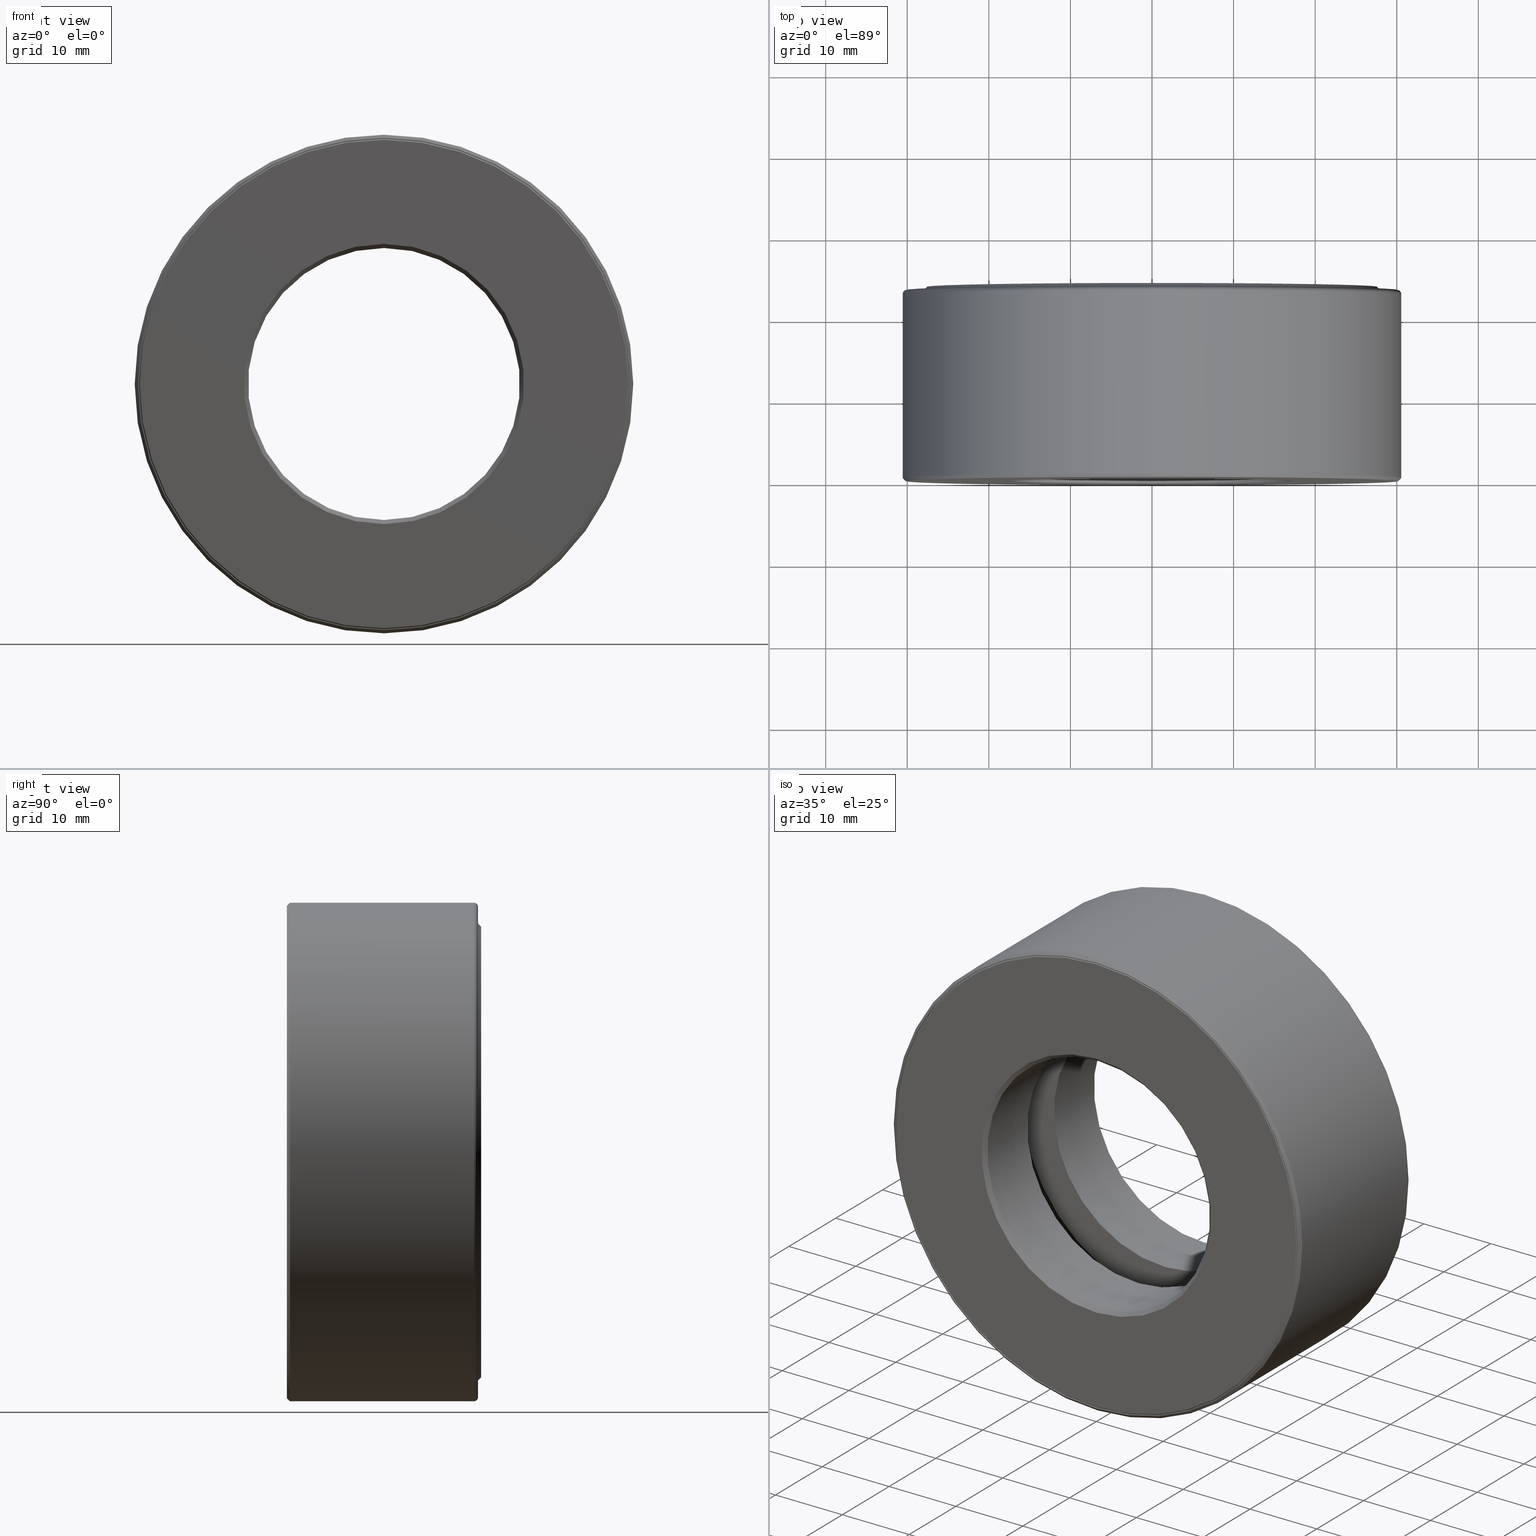
[diagram: canonical four-view strip — front | top / right | iso, engineering-drawing reading convention]
A machine part, canonical four-view strip (front | top / right | iso — engineering-drawing reading convention). The complete STEP part file that produces these views, byte-faithful:
ISO-10303-21;
HEADER;
FILE_DESCRIPTION (( 'STEP AP203' ),
    '1' );
FILE_NAME ('T-100-16.step',
    '2016-06-29T18:27:20',
    ( '' ),
    ( '' ),
    'SwSTEP 2.0',
    'SolidWorks 2016',
    '' );
FILE_SCHEMA (( 'CONFIG_CONTROL_DESIGN' ));
ENDSEC;

DATA;
#1 = PRODUCT_DEFINITION ( 'UNKNOWN', '', #219, #387 ) ;
#2 = CARTESIAN_POINT ( 'NONE',  ( 0.0000000000000000000, 0.3562500000000000100, 1.136625000000000000 ) ) ;
#3 = DIRECTION ( 'NONE',  ( 0.0000000000000000000, 0.0000000000000000000, 1.000000000000000000 ) ) ;
#4 = CARTESIAN_POINT ( 'NONE',  ( 0.0000000000000000000, 0.9024999999999999700, 0.0000000000000000000 ) ) ;
#5 = CALENDAR_DATE ( 2016, 29, 6 ) ;
#6 = CALENDAR_DATE ( 2016, 29, 6 ) ;
#7 = ADVANCED_FACE ( 'NONE', ( ), #266, .T. ) ;
#8 = CIRCLE ( 'NONE', #453, 1.183125000000000000 ) ;
#9 = CARTESIAN_POINT ( 'NONE',  ( 0.9866249999999999700, 0.4687499999999998900, -6.889565551872212700E-015 ) ) ;
#10 = ORIENTED_EDGE ( 'NONE', *, *, #21, .T. ) ;
#11 = ORIENTED_EDGE ( 'NONE', *, *, #21, .F. ) ;
#12 = ORIENTED_EDGE ( 'NONE', *, *, #555, .F. ) ;
#13 = EDGE_CURVE ( 'NONE', #526, #526, #366, .T. ) ;
#14 = CC_DESIGN_PERSON_AND_ORGANIZATION_ASSIGNMENT ( #147, #563, ( #245 ) ) ;
#15 = CARTESIAN_POINT ( 'NONE',  ( 1.004991548302120000E-015, 0.5812499999999999300, 0.0000000000000000000 ) ) ;
#16 = DATE_AND_TIME ( #5, #515 ) ;
#17 = EDGE_LOOP ( 'NONE', ( #247 ) ) ;
#18 = SPHERICAL_SURFACE ( 'NONE', #592, 0.1874999999999999400 ) ;
#19 = DIRECTION ( 'NONE',  ( 0.0000000000000000000, -0.0000000000000000000, -1.000000000000000000 ) ) ;
#20 = EDGE_LOOP ( 'NONE', ( #280 ) ) ;
#21 = EDGE_CURVE ( 'NONE', #246, #246, #123, .T. ) ;
#22 = CARTESIAN_POINT ( 'NONE',  ( 0.0000000000000000000, 0.9024999999999999700, 0.0000000000000000000 ) ) ;
#23 = DATE_AND_TIME ( #434, #164 ) ;
#24 = ADVANCED_BREP_SHAPE_REPRESENTATION ( 'T-100-16', ( #457, #503, #244, #525, #287, #45, #25 ), #470 ) ;
#25 = AXIS2_PLACEMENT_3D ( 'NONE', #558, #3, #157 ) ;
#26 = CONICAL_SURFACE ( 'NONE', #257, 1.178125000000000100, 0.7853981633974420600 ) ;
#27 = FACE_OUTER_BOUND ( 'NONE', #114, .T. ) ;
#28 = CLOSED_SHELL ( 'NONE', ( #56 ) ) ;
#29 = CARTESIAN_POINT ( 'NONE',  ( 0.0000000000000000000, 0.9174999999999997600, 0.0000000000000000000 ) ) ;
#30 = PRODUCT_DEFINITION_SHAPE ( 'NONE', 'NONE',  #1 ) ;
#31 = EDGE_CURVE ( 'NONE', #343, #343, #248, .T. ) ;
#32 = PERSON_AND_ORGANIZATION ( #454, #480 ) ;
#33 = ORIENTED_EDGE ( 'NONE', *, *, #404, .F. ) ;
#34 = FACE_OUTER_BOUND ( 'NONE', #167, .T. ) ;
#35 = DIRECTION ( 'NONE',  ( -0.0000000000000000000, 1.000000000000000000, -0.0000000000000000000 ) ) ;
#36 = ADVANCED_FACE ( 'NONE', ( #281, #462 ), #64, .T. ) ;
#37 = DIRECTION ( 'NONE',  ( -0.0000000000000000000, 1.000000000000000000, -0.0000000000000000000 ) ) ;
#38 = CC_DESIGN_APPROVAL ( #482, ( #1 ) ) ;
#39 = ADVANCED_FACE ( 'NONE', ( #78, #379 ), #106, .F. ) ;
#40 = DATE_AND_TIME ( #6, #435 ) ;
#41 = FACE_OUTER_BOUND ( 'NONE', #437, .T. ) ;
#42 = ORIENTED_EDGE ( 'NONE', *, *, #478, .T. ) ;
#43 = FACE_BOUND ( 'NONE', #217, .T. ) ;
#44 = ORIENTED_EDGE ( 'NONE', *, *, #491, .T. ) ;
#45 = MANIFOLD_SOLID_BREP ( 'BALLS[3]', #490 ) ;
#46 = EDGE_CURVE ( 'NONE', #391, #391, #401, .T. ) ;
#47 = CARTESIAN_POINT ( 'NONE',  ( 0.0000000000000000000, 0.9174999999999997600, 0.6562500000000001100 ) ) ;
#48 = PERSON_AND_ORGANIZATION ( #454, #480 ) ;
#49 = CARTESIAN_POINT ( 'NONE',  ( -5.232370149155376900E-016, 0.3562499999999999000, 0.0000000000000000000 ) ) ;
#50 = CIRCLE ( 'NONE', #529, 0.6562500000000000000 ) ;
#51 = ORIENTED_EDGE ( 'NONE', *, *, #381, .F. ) ;
#52 = CIRCLE ( 'NONE', #127, 1.203125000000000000 ) ;
#53 = CARTESIAN_POINT ( 'NONE',  ( 0.0000000000000000000, 0.9174999999999997600, 0.0000000000000000000 ) ) ;
#54 = CARTESIAN_POINT ( 'NONE',  ( 0.0000000000000000000, 0.004999999999999944600, 1.183125000000000000 ) ) ;
#55 = AXIS2_PLACEMENT_3D ( 'NONE', #403, #398, #588 ) ;
#56 = ADVANCED_FACE ( 'NONE', ( ), #18, .T. ) ;
#57 = APPLICATION_PROTOCOL_DEFINITION ( 'international standard', 'config_control_design', 1994, #154 ) ;
#58 = MECHANICAL_CONTEXT ( 'NONE', #154, 'mechanical' ) ;
#59 = SPHERICAL_SURFACE ( 'NONE', #385, 0.1874999999999999400 ) ;
#60 = AXIS2_PLACEMENT_3D ( 'NONE', #4, #340, #102 ) ;
#61 = ORIENTED_EDGE ( 'NONE', *, *, #584, .T. ) ;
#62 = DIRECTION ( 'NONE',  ( 0.0000000000000000000, 0.0000000000000000000, 1.000000000000000000 ) ) ;
#63 = DIRECTION ( 'NONE',  ( -0.0000000000000000000, 1.000000000000000000, -0.0000000000000000000 ) ) ;
#64 = PLANE ( 'NONE',  #74 ) ;
#65 = CIRCLE ( 'NONE', #348, 0.6562500000000001100 ) ;
#66 = ORIENTED_EDGE ( 'NONE', *, *, #81, .T. ) ;
#67 = EDGE_CURVE ( 'NONE', #71, #71, #533, .T. ) ;
#68 = CARTESIAN_POINT ( 'NONE',  ( 3.444782775936106400E-015, 0.4687499999999998900, 0.9866249999999999700 ) ) ;
#69 = CC_DESIGN_PERSON_AND_ORGANIZATION_ASSIGNMENT ( #479, #519, ( #219 ) ) ;
#70 = DIRECTION ( 'NONE',  ( 0.0000000000000000000, 0.0000000000000000000, 1.000000000000000000 ) ) ;
#71 = VERTEX_POINT ( 'NONE', #189 ) ;
#72 = DIRECTION ( 'NONE',  ( 0.0000000000000000000, 0.0000000000000000000, 1.000000000000000000 ) ) ;
#73 = DIRECTION ( 'NONE',  ( -0.0000000000000000000, 1.000000000000000000, -0.0000000000000000000 ) ) ;
#74 = AXIS2_PLACEMENT_3D ( 'NONE', #390, #484, #302 ) ;
#75 = ADVANCED_FACE ( 'NONE', ( #359, #34 ), #467, .F. ) ;
#76 = VERTEX_POINT ( 'NONE', #243 ) ;
#77 = EDGE_LOOP ( 'NONE', ( #66 ) ) ;
#78 = FACE_OUTER_BOUND ( 'NONE', #254, .T. ) ;
#79 = EDGE_LOOP ( 'NONE', ( #576 ) ) ;
#80 = AXIS2_PLACEMENT_3D ( 'NONE', #324, #459, #505 ) ;
#81 = EDGE_CURVE ( 'NONE', #540, #540, #242, .T. ) ;
#82 = DIRECTION ( 'NONE',  ( -0.0000000000000000000, 1.000000000000000000, -0.0000000000000000000 ) ) ;
#83 = VERTEX_POINT ( 'NONE', #198 ) ;
#84 = ORIENTED_EDGE ( 'NONE', *, *, #183, .T. ) ;
#85 = AXIS2_PLACEMENT_3D ( 'NONE', #227, #502, #271 ) ;
#86 = DIRECTION ( 'NONE',  ( 0.0000000000000000000, 0.0000000000000000000, 1.000000000000000000 ) ) ;
#87 = DIRECTION ( 'NONE',  ( 1.047444401652939500E-014, 0.0000000000000000000, 1.000000000000000000 ) ) ;
#88 = VERTEX_POINT ( 'NONE', #325 ) ;
#89 = EDGE_LOOP ( 'NONE', ( #234 ) ) ;
#90 = CARTESIAN_POINT ( 'NONE',  ( 0.0000000000000000000, -6.590143231196515200E-017, 0.0000000000000000000 ) ) ;
#91 = FACE_BOUND ( 'NONE', #586, .T. ) ;
#92 = CARTESIAN_POINT ( 'NONE',  ( 0.0000000000000000000, 0.5812499999999999300, 0.0000000000000000000 ) ) ;
#93 = DIRECTION ( 'NONE',  ( -0.0000000000000000000, 1.000000000000000000, -0.0000000000000000000 ) ) ;
#94 = CARTESIAN_POINT ( 'NONE',  ( 0.0000000000000000000, 0.3562499999999999000, 0.0000000000000000000 ) ) ;
#95 = AXIS2_PLACEMENT_3D ( 'NONE', #174, #485, #536 ) ;
#96 = CARTESIAN_POINT ( 'NONE',  ( 0.0000000000000000000, -6.509481547403126000E-017, 1.178125000000000100 ) ) ;
#97 = AXIS2_PLACEMENT_3D ( 'NONE', #268, #407, #405 ) ;
#98 = FACE_OUTER_BOUND ( 'NONE', #77, .T. ) ;
#99 = ORIENTED_EDGE ( 'NONE', *, *, #555, .T. ) ;
#100 = APPROVAL_ROLE ( '' ) ;
#101 = PERSON_AND_ORGANIZATION_ROLE ( 'creator' ) ;
#102 = DIRECTION ( 'NONE',  ( 0.0000000000000000000, 0.0000000000000000000, 1.000000000000000000 ) ) ;
#103 = CARTESIAN_POINT ( 'NONE',  ( 0.0000000000000000000, 0.3562500000000000100, 0.0000000000000000000 ) ) ;
#104 = FACE_BOUND ( 'NONE', #201, .T. ) ;
#105 = EDGE_LOOP ( 'NONE', ( #99 ) ) ;
#106 = TOROIDAL_SURFACE ( 'NONE', #330, 0.9866249999999999700, 0.1874999999999999700 ) ;
#107 = CARTESIAN_POINT ( 'NONE',  ( 0.0000000000000000000, 0.9024999999999999700, 0.0000000000000000000 ) ) ;
#108 = EDGE_LOOP ( 'NONE', ( #560 ) ) ;
#109 = EDGE_CURVE ( 'NONE', #88, #88, #52, .T. ) ;
#110 = EDGE_LOOP ( 'NONE', ( #142 ) ) ;
#111 = CARTESIAN_POINT ( 'NONE',  ( 0.0000000000000000000, 0.9024999999999999700, 0.0000000000000000000 ) ) ;
#112 = CARTESIAN_POINT ( 'NONE',  ( 0.0000000000000000000, -6.829619984160658000E-017, 0.0000000000000000000 ) ) ;
#113 = DIRECTION ( 'NONE',  ( -0.0000000000000000000, 1.000000000000000000, -0.0000000000000000000 ) ) ;
#114 = EDGE_LOOP ( 'NONE', ( #327 ) ) ;
#115 = ORIENTED_EDGE ( 'NONE', *, *, #46, .F. ) ;
#116 = ORIENTED_EDGE ( 'NONE', *, *, #252, .F. ) ;
#117 = EDGE_CURVE ( 'NONE', #337, #337, #65, .T. ) ;
#118 = CC_DESIGN_PERSON_AND_ORGANIZATION_ASSIGNMENT ( #32, #196, ( #184 ) ) ;
#119 = DIRECTION ( 'NONE',  ( 0.0000000000000000000, 0.0000000000000000000, 1.000000000000000000 ) ) ;
#120 = CALENDAR_DATE ( 2016, 29, 6 ) ;
#121 = CIRCLE ( 'NONE', #395, 1.176124999999999900 ) ;
#122 = EDGE_LOOP ( 'NONE', ( #44 ) ) ;
#123 = CIRCLE ( 'NONE', #433, 1.123125000000000200 ) ;
#124 = DIRECTION ( 'NONE',  ( 0.0000000000000000000, 0.0000000000000000000, 1.000000000000000000 ) ) ;
#125 = ADVANCED_FACE ( 'NONE', ( #549, #509 ), #546, .F. ) ;
#126 = DIRECTION ( 'NONE',  ( 0.0000000000000000000, 0.0000000000000000000, 1.000000000000000000 ) ) ;
#127 = AXIS2_PLACEMENT_3D ( 'NONE', #130, #73, #494 ) ;
#128 = CARTESIAN_POINT ( 'NONE',  ( 0.0000000000000000000, -6.509481547403126000E-017, 0.0000000000000000000 ) ) ;
#129 = COORDINATED_UNIVERSAL_TIME_OFFSET ( 5, 0, .BEHIND. ) ;
#130 = CARTESIAN_POINT ( 'NONE',  ( 0.0000000000000000000, 0.01499999999999997700, 0.0000000000000000000 ) ) ;
#131 = ORIENTED_EDGE ( 'NONE', *, *, #31, .F. ) ;
#132 = CIRCLE ( 'NONE', #358, 0.6762500000000003500 ) ;
#133 = DIRECTION ( 'NONE',  ( 0.0000000000000000000, 0.0000000000000000000, 1.000000000000000000 ) ) ;
#134 = AXIS2_PLACEMENT_3D ( 'NONE', #231, #553, #195 ) ;
#135 = ADVANCED_FACE ( 'NONE', ( #301, #43 ), #589, .T. ) ;
#136 = ADVANCED_FACE ( 'NONE', ( #599, #528 ), #222, .T. ) ;
#137 = LOCAL_TIME ( 14, 27, 20.00000000000000000, #334 ) ;
#138 = CARTESIAN_POINT ( 'NONE',  ( 0.0000000000000000000, 0.5812499999999999300, 1.176125000000000100 ) ) ;
#139 = VERTEX_POINT ( 'NONE', #333 ) ;
#140 = EDGE_LOOP ( 'NONE', ( #516 ) ) ;
#141 = ORIENTED_EDGE ( 'NONE', *, *, #67, .F. ) ;
#142 = ORIENTED_EDGE ( 'NONE', *, *, #389, .T. ) ;
#143 = DIRECTION ( 'NONE',  ( -0.0000000000000000000, 1.000000000000000000, -0.0000000000000000000 ) ) ;
#144 = AXIS2_PLACEMENT_3D ( 'NONE', #112, #307, #431 ) ;
#145 = CARTESIAN_POINT ( 'NONE',  ( 0.0000000000000000000, 0.5812499999999999300, 1.136625000000000000 ) ) ;
#146 = DIRECTION ( 'NONE',  ( -0.0000000000000000000, 1.000000000000000000, -0.0000000000000000000 ) ) ;
#147 = PERSON_AND_ORGANIZATION ( #454, #480 ) ;
#148 = DIRECTION ( 'NONE',  ( 0.0000000000000000000, -1.000000000000000000, 0.0000000000000000000 ) ) ;
#149 = CC_DESIGN_DATE_AND_TIME_ASSIGNMENT ( #23, #370, ( #245 ) ) ;
#150 = EDGE_LOOP ( 'NONE', ( #356 ) ) ;
#151 = CARTESIAN_POINT ( 'NONE',  ( 0.0000000000000000000, 0.9225000000000001000, 1.183125000000000000 ) ) ;
#152 = CYLINDRICAL_SURFACE ( 'NONE', #338, 1.183125000000000000 ) ;
#153 = DIRECTION ( 'NONE',  ( -0.0000000000000000000, 1.000000000000000000, -0.0000000000000000000 ) ) ;
#154 = APPLICATION_CONTEXT ( 'configuration controlled 3d designs of mechanical parts and assemblies' ) ;
#155 = AXIS2_PLACEMENT_3D ( 'NONE', #111, #211, #532 ) ;
#156 = CARTESIAN_POINT ( 'NONE',  ( 0.0000000000000000000, 0.3562500000000000700, 0.6562500000000001100 ) ) ;
#157 = DIRECTION ( 'NONE',  ( 1.000000000000000000, 0.0000000000000000000, 0.0000000000000000000 ) ) ;
#158 = APPROVAL_DATE_TIME ( #595, #504 ) ;
#159 = DIRECTION ( 'NONE',  ( 0.0000000000000000000, 0.0000000000000000000, 1.000000000000000000 ) ) ;
#160 = AXIS2_PLACEMENT_3D ( 'NONE', #228, #363, #86 ) ;
#161 = VERTEX_POINT ( 'NONE', #466 ) ;
#162 = FACE_OUTER_BOUND ( 'NONE', #300, .T. ) ;
#163 = DIRECTION ( 'NONE',  ( 0.0000000000000000000, 0.0000000000000000000, 1.000000000000000000 ) ) ;
#164 = LOCAL_TIME ( 14, 27, 20.00000000000000000, #581 ) ;
#165 = ORIENTED_EDGE ( 'NONE', *, *, #514, .T. ) ;
#166 = FACE_OUTER_BOUND ( 'NONE', #355, .T. ) ;
#167 = EDGE_LOOP ( 'NONE', ( #309 ) ) ;
#168 = DIRECTION ( 'NONE',  ( 0.0000000000000000000, 0.0000000000000000000, 1.000000000000000000 ) ) ;
#169 = AXIS2_PLACEMENT_3D ( 'NONE', #107, #578, #346 ) ;
#170 = FACE_BOUND ( 'NONE', #489, .T. ) ;
#171 = ORIENTED_EDGE ( 'NONE', *, *, #404, .T. ) ;
#172 = ORIENTED_EDGE ( 'NONE', *, *, #236, .T. ) ;
#173 = CARTESIAN_POINT ( 'NONE',  ( 0.0000000000000000000, 0.3562500000000000700, 0.0000000000000000000 ) ) ;
#174 = CARTESIAN_POINT ( 'NONE',  ( 0.0000000000000000000, 0.5812499999999999300, 0.0000000000000000000 ) ) ;
#175 = AXIS2_PLACEMENT_3D ( 'NONE', #176, #353, #493 ) ;
#176 = CARTESIAN_POINT ( 'NONE',  ( -1.137650739174976800E-032, -3.254740773701561800E-017, 0.0000000000000000000 ) ) ;
#177 = FACE_OUTER_BOUND ( 'NONE', #548, .T. ) ;
#178 = EDGE_LOOP ( 'NONE', ( #171 ) ) ;
#179 = FACE_OUTER_BOUND ( 'NONE', #499, .T. ) ;
#180 = APPROVAL ( #382, 'UNSPECIFIED' ) ;
#181 = DIRECTION ( 'NONE',  ( 0.0000000000000000000, 0.0000000000000000000, 1.000000000000000000 ) ) ;
#182 = DIRECTION ( 'NONE',  ( -0.0000000000000000000, 1.000000000000000000, 0.0000000000000000000 ) ) ;
#183 = EDGE_CURVE ( 'NONE', #259, #259, #577, .T. ) ;
#184 = PRODUCT ( 'T-100-16', 'T-100-16', '', ( #58 ) ) ;
#185 = FACE_OUTER_BOUND ( 'NONE', #456, .T. ) ;
#186 = EDGE_LOOP ( 'NONE', ( #282 ) ) ;
#187 = DIRECTION ( 'NONE',  ( 0.0000000000000000000, 0.0000000000000000000, 1.000000000000000000 ) ) ;
#188 = CC_DESIGN_DATE_AND_TIME_ASSIGNMENT ( #305, #471, ( #1 ) ) ;
#189 = CARTESIAN_POINT ( 'NONE',  ( 0.0000000000000000000, -6.829619984160658000E-017, 1.188125000000000100 ) ) ;
#190 = DIRECTION ( 'NONE',  ( 0.0000000000000000000, 0.0000000000000000000, 1.000000000000000000 ) ) ;
#191 = FACE_OUTER_BOUND ( 'NONE', #20, .T. ) ;
#192 = EDGE_LOOP ( 'NONE', ( #141 ) ) ;
#193 = ADVANCED_FACE ( 'NONE', ( #179, #561 ), #152, .F. ) ;
#194 = CARTESIAN_POINT ( 'NONE',  ( 0.0000000000000000000, 0.004999999999999944600, 0.0000000000000000000 ) ) ;
#195 = DIRECTION ( 'NONE',  ( 0.0000000000000000000, 0.0000000000000000000, 1.000000000000000000 ) ) ;
#196 = PERSON_AND_ORGANIZATION_ROLE ( 'design_owner' ) ;
#197 = APPLICATION_CONTEXT ( 'configuration controlled 3d designs of mechanical parts and assemblies' ) ;
#198 = CARTESIAN_POINT ( 'NONE',  ( 0.0000000000000000000, 0.0000000000000000000, 0.6762500000000002400 ) ) ;
#199 = ADVANCED_FACE ( 'NONE', ( #162, #166 ), #260, .F. ) ;
#200 = FACE_BOUND ( 'NONE', #322, .T. ) ;
#201 = EDGE_LOOP ( 'NONE', ( #116 ) ) ;
#202 = CARTESIAN_POINT ( 'NONE',  ( 0.0000000000000000000, 0.4687499999999999400, 0.0000000000000000000 ) ) ;
#203 = UNCERTAINTY_MEASURE_WITH_UNIT (LENGTH_MEASURE( 1.000000000000000100E-005 ), #565, 'distance_accuracy_value', 'NONE');
#204 = DIRECTION ( 'NONE',  ( -0.0000000000000000000, 1.000000000000000000, -0.0000000000000000000 ) ) ;
#205 = CARTESIAN_POINT ( 'NONE',  ( 0.0000000000000000000, 0.9225000000000001000, 0.0000000000000000000 ) ) ;
#206 = VERTEX_POINT ( 'NONE', #336 ) ;
#207 = CLOSED_SHELL ( 'NONE', ( #7 ) ) ;
#208 = FACE_OUTER_BOUND ( 'NONE', #415, .T. ) ;
#209 = ORIENTED_EDGE ( 'NONE', *, *, #216, .T. ) ;
#210 = DIRECTION ( 'NONE',  ( 0.0000000000000000000, 0.0000000000000000000, 1.000000000000000000 ) ) ;
#211 = DIRECTION ( 'NONE',  ( -0.0000000000000000000, 1.000000000000000000, -0.0000000000000000000 ) ) ;
#212 = AXIS2_PLACEMENT_3D ( 'NONE', #205, #430, #296 ) ;
#213 = DIRECTION ( 'NONE',  ( 0.0000000000000000000, 0.0000000000000000000, -1.000000000000000000 ) ) ;
#214 = VERTEX_POINT ( 'NONE', #424 ) ;
#215 = CLOSED_SHELL ( 'NONE', ( #543 ) ) ;
#216 = EDGE_CURVE ( 'NONE', #273, #273, #474, .T. ) ;
#217 = EDGE_LOOP ( 'NONE', ( #579 ) ) ;
#218 = DIRECTION ( 'NONE',  ( -1.000000000000000000, 0.0000000000000000000, 3.491481338843131800E-015 ) ) ;
#219 = PRODUCT_DEFINITION_FORMATION_WITH_SPECIFIED_SOURCE ( 'ANY', '', #184, .NOT_KNOWN. ) ;
#220 = ADVANCED_FACE ( 'NONE', ( #498, #91 ), #569, .F. ) ;
#221 = ORIENTED_EDGE ( 'NONE', *, *, #117, .F. ) ;
#222 = CONICAL_SURFACE ( 'NONE', #55, 1.088124999999999800, 0.7853981633974498300 ) ;
#223 = CARTESIAN_POINT ( 'NONE',  ( 0.0000000000000000000, 0.9024999999999999700, 0.0000000000000000000 ) ) ;
#224 = DIRECTION ( 'NONE',  ( -0.0000000000000000000, 1.000000000000000000, -0.0000000000000000000 ) ) ;
#225 = DIRECTION ( 'NONE',  ( -0.0000000000000000000, 1.000000000000000000, 0.0000000000000000000 ) ) ;
#226 = CYLINDRICAL_SURFACE ( 'NONE', #80, 0.6562500000000001100 ) ;
#227 = CARTESIAN_POINT ( 'NONE',  ( 0.0000000000000000000, 0.0000000000000000000, 0.0000000000000000000 ) ) ;
#228 = CARTESIAN_POINT ( 'NONE',  ( 0.0000000000000000000, 0.0000000000000000000, 0.0000000000000000000 ) ) ;
#229 = ADVANCED_FACE ( 'NONE', ( #517, #587 ), #513, .F. ) ;
#230 = DIRECTION ( 'NONE',  ( 0.0000000000000000000, 0.0000000000000000000, 1.000000000000000000 ) ) ;
#231 = CARTESIAN_POINT ( 'NONE',  ( 0.0000000000000000000, 0.0000000000000000000, 0.0000000000000000000 ) ) ;
#232 = SPHERICAL_SURFACE ( 'NONE', #520, 0.1874999999999999400 ) ;
#233 = CARTESIAN_POINT ( 'NONE',  ( 0.0000000000000000000, 0.3562500000000000700, 0.8366249999999999500 ) ) ;
#234 = ORIENTED_EDGE ( 'NONE', *, *, #117, .T. ) ;
#235 = EDGE_LOOP ( 'NONE', ( #351 ) ) ;
#236 = EDGE_CURVE ( 'NONE', #161, #161, #328, .T. ) ;
#237 = DIRECTION ( 'NONE',  ( 0.0000000000000000000, 0.0000000000000000000, 1.000000000000000000 ) ) ;
#238 = DIRECTION ( 'NONE',  ( 0.0000000000000000000, -0.0000000000000000000, -1.000000000000000000 ) ) ;
#239 = AXIS2_PLACEMENT_3D ( 'NONE', #476, #477, #213 ) ;
#240 = ADVANCED_FACE ( 'NONE', ( #384, #345 ), #566, .T. ) ;
#241 = PERSON_AND_ORGANIZATION_ROLE ( 'design_supplier' ) ;
#242 = CIRCLE ( 'NONE', #283, 0.8366249999999999500 ) ;
#243 = CARTESIAN_POINT ( 'NONE',  ( 0.0000000000000000000, 0.9024999999999999700, 1.203125000000000000 ) ) ;
#244 = MANIFOLD_SOLID_BREP ( 'Revolve3', #215 ) ;
#245 = SECURITY_CLASSIFICATION ( '', '', #604 ) ;
#246 = VERTEX_POINT ( 'NONE', #556 ) ;
#247 = ORIENTED_EDGE ( 'NONE', *, *, #316, .F. ) ;
#248 = CIRCLE ( 'NONE', #95, 1.176125000000000100 ) ;
#249 = DIRECTION ( 'NONE',  ( -0.0000000000000000000, 1.000000000000000000, -0.0000000000000000000 ) ) ;
#250 = AXIS2_PLACEMENT_3D ( 'NONE', #341, #251, #573 ) ;
#251 = DIRECTION ( 'NONE',  ( -0.0000000000000000000, 1.000000000000000000, -0.0000000000000000000 ) ) ;
#252 = EDGE_CURVE ( 'NONE', #399, #399, #255, .T. ) ;
#253 = LENGTH_MEASURE_WITH_UNIT ( LENGTH_MEASURE( 0.02539999999999999900 ), #289 );
#254 = EDGE_LOOP ( 'NONE', ( #61 ) ) ;
#255 = CIRCLE ( 'NONE', #311, 1.136625000000000000 ) ;
#256 = CARTESIAN_POINT ( 'NONE',  ( 0.0000000000000000000, 0.4687499999999999400, 0.0000000000000000000 ) ) ;
#257 = AXIS2_PLACEMENT_3D ( 'NONE', #128, #450, #317 ) ;
#258 = CARTESIAN_POINT ( 'NONE',  ( 0.0000000000000000000, 0.0000000000000000000, 0.0000000000000000000 ) ) ;
#259 = VERTEX_POINT ( 'NONE', #145 ) ;
#260 = CYLINDRICAL_SURFACE ( 'NONE', #134, 0.6562500000000001100 ) ;
#261 = ADVANCED_FACE ( 'NONE', ( #429, #208 ), #605, .F. ) ;
#262 = ADVANCED_FACE ( 'NONE', ( #314, #445 ), #392, .T. ) ;
#263 = VERTEX_POINT ( 'NONE', #284 ) ;
#264 = ORIENTED_EDGE ( 'NONE', *, *, #389, .F. ) ;
#265 = AXIS2_PLACEMENT_3D ( 'NONE', #15, #432, #19 ) ;
#266 = SPHERICAL_SURFACE ( 'NONE', #413, 0.1874999999999999400 ) ;
#267 = ORIENTED_EDGE ( 'NONE', *, *, #297, .T. ) ;
#268 = CARTESIAN_POINT ( 'NONE',  ( 0.0000000000000000000, 0.0000000000000000000, 0.0000000000000000000 ) ) ;
#269 = CARTESIAN_POINT ( 'NONE',  ( 0.0000000000000000000, 0.3562500000000000700, 0.0000000000000000000 ) ) ;
#270 = EDGE_CURVE ( 'NONE', #598, #598, #132, .T. ) ;
#271 = DIRECTION ( 'NONE',  ( 0.0000000000000000000, 0.0000000000000000000, 1.000000000000000000 ) ) ;
#272 = DIRECTION ( 'NONE',  ( -0.0000000000000000000, 1.000000000000000000, -0.0000000000000000000 ) ) ;
#273 = VERTEX_POINT ( 'NONE', #469 ) ;
#274 = TOROIDAL_SURFACE ( 'NONE', #169, 1.183125000000000000, 0.02000000000000005900 ) ;
#275 = CC_DESIGN_APPROVAL ( #180, ( #245 ) ) ;
#276 = CARTESIAN_POINT ( 'NONE',  ( -0.9866249999999999700, 0.4687499999999998900, 0.0000000000000000000 ) ) ;
#277 = DIRECTION ( 'NONE',  ( 0.0000000000000000000, 0.0000000000000000000, 1.000000000000000000 ) ) ;
#278 = AXIS2_PLACEMENT_3D ( 'NONE', #286, #148, #238 ) ;
#279 = VERTEX_POINT ( 'NONE', #285 ) ;
#280 = ORIENTED_EDGE ( 'NONE', *, *, #109, .T. ) ;
#281 = FACE_BOUND ( 'NONE', #497, .T. ) ;
#282 = ORIENTED_EDGE ( 'NONE', *, *, #67, .T. ) ;
#283 = AXIS2_PLACEMENT_3D ( 'NONE', #269, #35, #133 ) ;
#284 = CARTESIAN_POINT ( 'NONE',  ( 0.0000000000000000000, 0.5812499999999999300, 0.8366249999999999500 ) ) ;
#285 = CARTESIAN_POINT ( 'NONE',  ( 0.0000000000000000000, 0.02000000000000033300, 0.6562500000000000000 ) ) ;
#286 = CARTESIAN_POINT ( 'NONE',  ( 0.0000000000000000000, 0.9225000000000001000, 0.0000000000000000000 ) ) ;
#287 = MANIFOLD_SOLID_BREP ( 'BALLS[2]', #207 ) ;
#288 = AXIS2_PLACEMENT_3D ( 'NONE', #173, #487, #442 ) ;
#289 =( LENGTH_UNIT ( ) NAMED_UNIT ( * ) SI_UNIT ( $, .METRE. ) );
#290 = CONICAL_SURFACE ( 'NONE', #419, 0.6562500000000001100, 0.7853981633974449500 ) ;
#291 = EDGE_LOOP ( 'NONE', ( #12 ) ) ;
#292 = FACE_OUTER_BOUND ( 'NONE', #110, .T. ) ;
#293 = DIRECTION ( 'NONE',  ( -0.0000000000000000000, 1.000000000000000000, -0.0000000000000000000 ) ) ;
#294 = DIRECTION ( 'NONE',  ( 0.0000000000000000000, 0.0000000000000000000, 1.000000000000000000 ) ) ;
#295 = DIRECTION ( 'NONE',  ( -1.000000000000000000, 0.0000000000000000000, 6.982962677686263600E-015 ) ) ;
#296 = DIRECTION ( 'NONE',  ( 0.0000000000000000000, 0.0000000000000000000, 1.000000000000000000 ) ) ;
#297 = EDGE_CURVE ( 'NONE', #378, #378, #591, .T. ) ;
#298 = SHAPE_DEFINITION_REPRESENTATION ( #30, #24 ) ;
#299 = CYLINDRICAL_SURFACE ( 'NONE', #342, 1.183125000000000000 ) ;
#300 = EDGE_LOOP ( 'NONE', ( #33 ) ) ;
#301 = FACE_OUTER_BOUND ( 'NONE', #372, .T. ) ;
#302 = DIRECTION ( 'NONE',  ( 0.0000000000000000000, -0.0000000000000000000, -1.000000000000000000 ) ) ;
#303 = AXIS2_PLACEMENT_3D ( 'NONE', #594, #411, #277 ) ;
#304 = CARTESIAN_POINT ( 'NONE',  ( 0.0000000000000000000, 0.9375000000000000000, 0.0000000000000000000 ) ) ;
#305 = DATE_AND_TIME ( #319, #137 ) ;
#306 = AXIS2_PLACEMENT_3D ( 'NONE', #258, #441, #347 ) ;
#307 = DIRECTION ( 'NONE',  ( -0.0000000000000000000, 1.000000000000000000, -0.0000000000000000000 ) ) ;
#308 = FACE_OUTER_BOUND ( 'NONE', #571, .T. ) ;
#309 = ORIENTED_EDGE ( 'NONE', *, *, #316, .T. ) ;
#310 = ORIENTED_EDGE ( 'NONE', *, *, #13, .F. ) ;
#311 = AXIS2_PLACEMENT_3D ( 'NONE', #103, #249, #168 ) ;
#312 = FACE_OUTER_BOUND ( 'NONE', #534, .T. ) ;
#313 = EDGE_LOOP ( 'NONE', ( #11 ) ) ;
#314 = FACE_OUTER_BOUND ( 'NONE', #140, .T. ) ;
#315 = ORIENTED_EDGE ( 'NONE', *, *, #381, .T. ) ;
#316 = EDGE_CURVE ( 'NONE', #206, #206, #350, .T. ) ;
#317 = DIRECTION ( 'NONE',  ( 0.0000000000000000000, 0.0000000000000000000, 1.000000000000000000 ) ) ;
#318 = CARTESIAN_POINT ( 'NONE',  ( 0.0000000000000000000, 0.8495000000000003700, 0.0000000000000000000 ) ) ;
#319 = CALENDAR_DATE ( 2016, 29, 6 ) ;
#320 = AXIS2_PLACEMENT_3D ( 'NONE', #90, #146, #418 ) ;
#321 = CIRCLE ( 'NONE', #552, 0.8366249999999999500 ) ;
#322 = EDGE_LOOP ( 'NONE', ( #444 ) ) ;
#323 = PLANE ( 'NONE',  #439 ) ;
#324 = CARTESIAN_POINT ( 'NONE',  ( 0.0000000000000000000, 0.0000000000000000000, 0.0000000000000000000 ) ) ;
#325 = CARTESIAN_POINT ( 'NONE',  ( 0.0000000000000000000, 0.01499999999999997700, 1.203125000000000000 ) ) ;
#326 = VERTEX_POINT ( 'NONE', #156 ) ;
#327 = ORIENTED_EDGE ( 'NONE', *, *, #491, .F. ) ;
#328 = CIRCLE ( 'NONE', #332, 0.6562500000000001100 ) ;
#329 = ORIENTED_EDGE ( 'NONE', *, *, #46, .T. ) ;
#330 = AXIS2_PLACEMENT_3D ( 'NONE', #256, #580, #72 ) ;
#331 = DIRECTION ( 'NONE',  ( 0.0000000000000000000, 0.0000000000000000000, -1.000000000000000000 ) ) ;
#332 = AXIS2_PLACEMENT_3D ( 'NONE', #386, #293, #210 ) ;
#333 = CARTESIAN_POINT ( 'NONE',  ( 0.0000000000000000000, -6.590143231196515200E-017, 1.183124999999999800 ) ) ;
#334 = COORDINATED_UNIVERSAL_TIME_OFFSET ( 5, 0, .BEHIND. ) ;
#335 = ADVANCED_FACE ( 'NONE', ( #27, #292 ), #274, .T. ) ;
#336 = CARTESIAN_POINT ( 'NONE',  ( 0.0000000000000000000, 0.9225000000000001000, 1.123125000000000200 ) ) ;
#337 = VERTEX_POINT ( 'NONE', #47 ) ;
#338 = AXIS2_PLACEMENT_3D ( 'NONE', #369, #506, #511 ) ;
#339 =( NAMED_UNIT ( * ) SI_UNIT ( $, .STERADIAN. ) SOLID_ANGLE_UNIT ( ) );
#340 = DIRECTION ( 'NONE',  ( -0.0000000000000000000, 1.000000000000000000, 0.0000000000000000000 ) ) ;
#341 = CARTESIAN_POINT ( 'NONE',  ( 0.0000000000000000000, -6.829619984160658000E-017, 0.0000000000000000000 ) ) ;
#342 = AXIS2_PLACEMENT_3D ( 'NONE', #452, #82, #551 ) ;
#343 = VERTEX_POINT ( 'NONE', #138 ) ;
#344 = EDGE_LOOP ( 'NONE', ( #84 ) ) ;
#345 = FACE_OUTER_BOUND ( 'NONE', #417, .T. ) ;
#346 = DIRECTION ( 'NONE',  ( 0.0000000000000000000, 0.0000000000000000000, 1.000000000000000000 ) ) ;
#347 = DIRECTION ( 'NONE',  ( 0.0000000000000000000, 0.0000000000000000000, 1.000000000000000000 ) ) ;
#348 = AXIS2_PLACEMENT_3D ( 'NONE', #29, #447, #181 ) ;
#349 = PERSON_AND_ORGANIZATION ( #454, #480 ) ;
#350 = CIRCLE ( 'NONE', #212, 1.123125000000000200 ) ;
#351 = ORIENTED_EDGE ( 'NONE', *, *, #81, .F. ) ;
#352 = AXIS2_PLACEMENT_3D ( 'NONE', #472, #204, #294 ) ;
#353 = DIRECTION ( 'NONE',  ( -0.0000000000000000000, 1.000000000000000000, 0.0000000000000000000 ) ) ;
#354 = FACE_OUTER_BOUND ( 'NONE', #89, .T. ) ;
#355 = EDGE_LOOP ( 'NONE', ( #42 ) ) ;
#356 = ORIENTED_EDGE ( 'NONE', *, *, #524, .F. ) ;
#357 = ADVANCED_FACE ( 'NONE', ( #373, #436 ), #460, .F. ) ;
#358 = AXIS2_PLACEMENT_3D ( 'NONE', #425, #63, #62 ) ;
#359 = FACE_OUTER_BOUND ( 'NONE', #313, .T. ) ;
#360 = EDGE_LOOP ( 'NONE', ( #51 ) ) ;
#361 = CARTESIAN_POINT ( 'NONE',  ( -2.398680184444861200E-031, -6.709881607678586600E-017, 0.0000000000000000000 ) ) ;
#362 = DIRECTION ( 'NONE',  ( -0.0000000000000000000, 1.000000000000000000, -0.0000000000000000000 ) ) ;
#363 = DIRECTION ( 'NONE',  ( -0.0000000000000000000, 1.000000000000000000, -0.0000000000000000000 ) ) ;
#364 = CC_DESIGN_SECURITY_CLASSIFICATION ( #245, ( #219 ) ) ;
#365 = CIRCLE ( 'NONE', #539, 1.203125000000000000 ) ;
#366 = CIRCLE ( 'NONE', #155, 1.183125000000000000 ) ;
#367 = EDGE_LOOP ( 'NONE', ( #165 ) ) ;
#368 = CARTESIAN_POINT ( 'NONE',  ( -1.033434832780831900E-014, 0.4687499999999998900, -0.9866249999999999700 ) ) ;
#369 = CARTESIAN_POINT ( 'NONE',  ( 0.0000000000000000000, 0.0000000000000000000, 0.0000000000000000000 ) ) ;
#370 = DATE_TIME_ROLE ( 'classification_date' ) ;
#371 = DIRECTION ( 'NONE',  ( 0.0000000000000000000, -0.0000000000000000000, -1.000000000000000000 ) ) ;
#372 = EDGE_LOOP ( 'NONE', ( #329 ) ) ;
#373 = FACE_OUTER_BOUND ( 'NONE', #291, .T. ) ;
#374 = AXIS2_PLACEMENT_3D ( 'NONE', #92, #362, #409 ) ;
#375 = ADVANCED_FACE ( 'NONE', ( #200, #98 ), #492, .F. ) ;
#376 = APPROVAL_STATUS ( 'not_yet_approved' ) ;
#377 = APPROVAL_PERSON_ORGANIZATION ( #496, #180, #388 ) ;
#378 = VERTEX_POINT ( 'NONE', #96 ) ;
#379 = FACE_OUTER_BOUND ( 'NONE', #461, .T. ) ;
#380 = DIRECTION ( 'NONE',  ( -0.0000000000000000000, 1.000000000000000000, -0.0000000000000000000 ) ) ;
#381 = EDGE_CURVE ( 'NONE', #214, #214, #121, .T. ) ;
#382 = APPROVAL_STATUS ( 'not_yet_approved' ) ;
#383 = ORIENTED_EDGE ( 'NONE', *, *, #216, .F. ) ;
#384 = FACE_BOUND ( 'NONE', #344, .T. ) ;
#385 = AXIS2_PLACEMENT_3D ( 'NONE', #368, #512, #87 ) ;
#386 = CARTESIAN_POINT ( 'NONE',  ( 0.0000000000000000000, 0.5812499999999999300, 0.0000000000000000000 ) ) ;
#387 = DESIGN_CONTEXT ( 'detailed design', #197, 'design' ) ;
#388 = APPROVAL_ROLE ( '' ) ;
#389 = EDGE_CURVE ( 'NONE', #76, #76, #365, .T. ) ;
#390 = CARTESIAN_POINT ( 'NONE',  ( -2.200813092608946800E-016, 0.5812499999999999300, 0.0000000000000000000 ) ) ;
#391 = VERTEX_POINT ( 'NONE', #600 ) ;
#392 = CONICAL_SURFACE ( 'NONE', #250, 1.188125000000000100, 0.7853981633974460600 ) ;
#393 = PRODUCT_RELATED_PRODUCT_CATEGORY ( 'detail', '', ( #184 ) ) ;
#394 = ADVANCED_FACE ( 'NONE', ( #570, #408 ), #26, .T. ) ;
#395 = AXIS2_PLACEMENT_3D ( 'NONE', #318, #397, #126 ) ;
#396 = ADVANCED_FACE ( 'NONE', ( #312, #177 ), #299, .F. ) ;
#397 = DIRECTION ( 'NONE',  ( -0.0000000000000000000, 1.000000000000000000, -0.0000000000000000000 ) ) ;
#398 = DIRECTION ( 'NONE',  ( 0.0000000000000000000, -1.000000000000000000, 0.0000000000000000000 ) ) ;
#399 = VERTEX_POINT ( 'NONE', #2 ) ;
#400 = ORIENTED_EDGE ( 'NONE', *, *, #514, .F. ) ;
#401 = CIRCLE ( 'NONE', #449, 1.088124999999999800 ) ;
#402 = DIRECTION ( 'NONE',  ( 0.0000000000000000000, 0.0000000000000000000, 1.000000000000000000 ) ) ;
#403 = CARTESIAN_POINT ( 'NONE',  ( 0.0000000000000000000, 0.9375000000000000000, 0.0000000000000000000 ) ) ;
#404 = EDGE_CURVE ( 'NONE', #279, #279, #50, .T. ) ;
#405 = DIRECTION ( 'NONE',  ( 0.0000000000000000000, 0.0000000000000000000, 1.000000000000000000 ) ) ;
#406 = COORDINATED_UNIVERSAL_TIME_OFFSET ( 5, 0, .BEHIND. ) ;
#407 = DIRECTION ( 'NONE',  ( -0.0000000000000000000, 1.000000000000000000, -0.0000000000000000000 ) ) ;
#408 = FACE_BOUND ( 'NONE', #423, .T. ) ;
#409 = DIRECTION ( 'NONE',  ( 0.0000000000000000000, 0.0000000000000000000, 1.000000000000000000 ) ) ;
#410 = DIRECTION ( 'NONE',  ( 0.0000000000000000000, -1.000000000000000000, 0.0000000000000000000 ) ) ;
#411 = DIRECTION ( 'NONE',  ( -0.0000000000000000000, 1.000000000000000000, -0.0000000000000000000 ) ) ;
#412 = ADVANCED_FACE ( 'NONE', ( #185, #554 ), #507, .T. ) ;
#413 = AXIS2_PLACEMENT_3D ( 'NONE', #9, #575, #295 ) ;
#414 = VERTEX_POINT ( 'NONE', #54 ) ;
#415 = EDGE_LOOP ( 'NONE', ( #541 ) ) ;
#416 = DIRECTION ( 'NONE',  ( 1.000000000000000000, 0.0000000000000000000, 0.0000000000000000000 ) ) ;
#417 = EDGE_LOOP ( 'NONE', ( #131 ) ) ;
#418 = DIRECTION ( 'NONE',  ( 0.0000000000000000000, 0.0000000000000000000, 1.000000000000000000 ) ) ;
#419 = AXIS2_PLACEMENT_3D ( 'NONE', #53, #93, #190 ) ;
#420 =( NAMED_UNIT ( * ) PLANE_ANGLE_UNIT ( ) SI_UNIT ( $, .RADIAN. ) );
#421 = APPROVAL_STATUS ( 'not_yet_approved' ) ;
#422 = CYLINDRICAL_SURFACE ( 'NONE', #85, 1.203125000000000000 ) ;
#423 = EDGE_LOOP ( 'NONE', ( #267 ) ) ;
#424 = CARTESIAN_POINT ( 'NONE',  ( 0.0000000000000000000, 0.8495000000000003700, 1.176124999999999900 ) ) ;
#425 = CARTESIAN_POINT ( 'NONE',  ( 0.0000000000000000000, 0.9375000000000000000, 0.0000000000000000000 ) ) ;
#426 = APPROVAL_DATE_TIME ( #16, #180 ) ;
#427 = CLOSED_SHELL ( 'NONE', ( #261, #597, #396, #220, #75, #229, #335, #440, #262, #451, #193, #394, #125, #357, #199, #375 ) ) ;
#428 = AXIS2_PLACEMENT_3D ( 'NONE', #602, #143, #237 ) ;
#429 = FACE_OUTER_BOUND ( 'NONE', #235, .T. ) ;
#430 = DIRECTION ( 'NONE',  ( -0.0000000000000000000, 1.000000000000000000, -0.0000000000000000000 ) ) ;
#431 = DIRECTION ( 'NONE',  ( 0.0000000000000000000, 0.0000000000000000000, 1.000000000000000000 ) ) ;
#432 = DIRECTION ( 'NONE',  ( 0.0000000000000000000, -1.000000000000000000, 0.0000000000000000000 ) ) ;
#433 = AXIS2_PLACEMENT_3D ( 'NONE', #22, #113, #119 ) ;
#434 = CALENDAR_DATE ( 2016, 29, 6 ) ;
#435 = LOCAL_TIME ( 14, 27, 20.00000000000000000, #129 ) ;
#436 = FACE_BOUND ( 'NONE', #178, .T. ) ;
#437 = EDGE_LOOP ( 'NONE', ( #209 ) ) ;
#438 = ORIENTED_EDGE ( 'NONE', *, *, #236, .F. ) ;
#439 = AXIS2_PLACEMENT_3D ( 'NONE', #361, #182, #187 ) ;
#440 = ADVANCED_FACE ( 'NONE', ( #530, #191 ), #422, .T. ) ;
#441 = DIRECTION ( 'NONE',  ( -0.0000000000000000000, 1.000000000000000000, -0.0000000000000000000 ) ) ;
#442 = DIRECTION ( 'NONE',  ( 0.0000000000000000000, -0.0000000000000000000, -1.000000000000000000 ) ) ;
#443 = CIRCLE ( 'NONE', #303, 1.183125000000000000 ) ;
#444 = ORIENTED_EDGE ( 'NONE', *, *, #478, .F. ) ;
#445 = FACE_BOUND ( 'NONE', #186, .T. ) ;
#446 = CLOSED_SHELL ( 'NONE', ( #240, #39, #36, #458, #550, #135, #136, #412 ) ) ;
#447 = DIRECTION ( 'NONE',  ( -0.0000000000000000000, 1.000000000000000000, -0.0000000000000000000 ) ) ;
#448 = EDGE_LOOP ( 'NONE', ( #264 ) ) ;
#449 = AXIS2_PLACEMENT_3D ( 'NONE', #304, #542, #70 ) ;
#450 = DIRECTION ( 'NONE',  ( -0.0000000000000000000, 1.000000000000000000, -0.0000000000000000000 ) ) ;
#451 = ADVANCED_FACE ( 'NONE', ( #585, #473 ), #323, .F. ) ;
#452 = CARTESIAN_POINT ( 'NONE',  ( 0.0000000000000000000, 0.0000000000000000000, 0.0000000000000000000 ) ) ;
#453 = AXIS2_PLACEMENT_3D ( 'NONE', #194, #272, #564 ) ;
#454 = PERSON ( 'UNSPECIFIED', 'UNSPECIFIED', 'UNSPECIFIED', ('UNSPECIFIED'), ('UNSPECIFIED'), ('UNSPECIFIED') ) ;
#455 = CIRCLE ( 'NONE', #160, 0.6762500000000002400 ) ;
#456 = EDGE_LOOP ( 'NONE', ( #603 ) ) ;
#457 = MANIFOLD_SOLID_BREP ( 'Revolve2[1]', #427 ) ;
#458 = ADVANCED_FACE ( 'NONE', ( #354, #308 ), #226, .F. ) ;
#459 = DIRECTION ( 'NONE',  ( -0.0000000000000000000, 1.000000000000000000, -0.0000000000000000000 ) ) ;
#460 = CONICAL_SURFACE ( 'NONE', #239, 0.6562500000000000000, 0.7853981633974449500 ) ;
#461 = EDGE_LOOP ( 'NONE', ( #510 ) ) ;
#462 = FACE_OUTER_BOUND ( 'NONE', #79, .T. ) ;
#463 = CC_DESIGN_PERSON_AND_ORGANIZATION_ASSIGNMENT ( #349, #101, ( #1 ) ) ;
#464 = APPROVAL_ROLE ( '' ) ;
#465 = APPROVAL_DATE_TIME ( #40, #482 ) ;
#466 = CARTESIAN_POINT ( 'NONE',  ( 0.0000000000000000000, 0.5812499999999999300, 0.6562500000000001100 ) ) ;
#467 = CYLINDRICAL_SURFACE ( 'NONE', #306, 1.123125000000000200 ) ;
#468 = EDGE_LOOP ( 'NONE', ( #115 ) ) ;
#469 = CARTESIAN_POINT ( 'NONE',  ( 0.0000000000000000000, 0.3562499999999999000, 1.183124999999999800 ) ) ;
#470 =( GEOMETRIC_REPRESENTATION_CONTEXT ( 3 ) GLOBAL_UNCERTAINTY_ASSIGNED_CONTEXT ( ( #203 ) ) GLOBAL_UNIT_ASSIGNED_CONTEXT ( ( #565, #420, #339 ) ) REPRESENTATION_CONTEXT ( 'NONE', 'WORKASPACE' ) );
#471 = DATE_TIME_ROLE ( 'creation_date' ) ;
#472 = CARTESIAN_POINT ( 'NONE',  ( 0.0000000000000000000, -6.509481547403126000E-017, 0.0000000000000000000 ) ) ;
#473 = FACE_BOUND ( 'NONE', #367, .T. ) ;
#474 = CIRCLE ( 'NONE', #535, 1.183124999999999800 ) ;
#475 = EDGE_LOOP ( 'NONE', ( #315 ) ) ;
#476 = CARTESIAN_POINT ( 'NONE',  ( 0.0000000000000000000, 0.02000000000000033300, 0.0000000000000000000 ) ) ;
#477 = DIRECTION ( 'NONE',  ( 0.0000000000000000000, -1.000000000000000000, 0.0000000000000000000 ) ) ;
#478 = EDGE_CURVE ( 'NONE', #326, #326, #547, .T. ) ;
#479 = PERSON_AND_ORGANIZATION ( #454, #480 ) ;
#480 = ORGANIZATION ( 'UNSPECIFIED', 'UNSPECIFIED', '' ) ;
#481 = EDGE_LOOP ( 'NONE', ( #527 ) ) ;
#482 = APPROVAL ( #376, 'UNSPECIFIED' ) ;
#483 = PERSON_AND_ORGANIZATION ( #454, #480 ) ;
#484 = DIRECTION ( 'NONE',  ( 0.0000000000000000000, -1.000000000000000000, 0.0000000000000000000 ) ) ;
#485 = DIRECTION ( 'NONE',  ( -0.0000000000000000000, 1.000000000000000000, -0.0000000000000000000 ) ) ;
#486 = PERSON_AND_ORGANIZATION ( #454, #480 ) ;
#487 = DIRECTION ( 'NONE',  ( 0.0000000000000000000, -1.000000000000000000, 0.0000000000000000000 ) ) ;
#488 = FACE_OUTER_BOUND ( 'NONE', #108, .T. ) ;
#489 = EDGE_LOOP ( 'NONE', ( #221 ) ) ;
#490 = CLOSED_SHELL ( 'NONE', ( #521 ) ) ;
#491 = EDGE_CURVE ( 'NONE', #559, #559, #443, .T. ) ;
#492 = PLANE ( 'NONE',  #288 ) ;
#493 = DIRECTION ( 'NONE',  ( 0.0000000000000000000, 0.0000000000000000000, 1.000000000000000000 ) ) ;
#494 = DIRECTION ( 'NONE',  ( 0.0000000000000000000, 0.0000000000000000000, 1.000000000000000000 ) ) ;
#495 = AXIS2_PLACEMENT_3D ( 'NONE', #202, #380, #163 ) ;
#496 = PERSON_AND_ORGANIZATION ( #454, #480 ) ;
#497 = EDGE_LOOP ( 'NONE', ( #172 ) ) ;
#498 = FACE_OUTER_BOUND ( 'NONE', #606, .T. ) ;
#499 = EDGE_LOOP ( 'NONE', ( #400 ) ) ;
#500 = CARTESIAN_POINT ( 'NONE',  ( 0.0000000000000000000, 0.9375000000000000000, 0.0000000000000000000 ) ) ;
#501 = AXIS2_PLACEMENT_3D ( 'NONE', #500, #225, #124 ) ;
#502 = DIRECTION ( 'NONE',  ( -0.0000000000000000000, 1.000000000000000000, -0.0000000000000000000 ) ) ;
#503 = MANIFOLD_SOLID_BREP ( 'Revolve2[2]', #446 ) ;
#504 = APPROVAL ( #421, 'UNSPECIFIED' ) ;
#505 = DIRECTION ( 'NONE',  ( 0.0000000000000000000, 0.0000000000000000000, 1.000000000000000000 ) ) ;
#506 = DIRECTION ( 'NONE',  ( -0.0000000000000000000, 1.000000000000000000, -0.0000000000000000000 ) ) ;
#507 = CYLINDRICAL_SURFACE ( 'NONE', #97, 1.176125000000000100 ) ;
#508 = DIRECTION ( 'NONE',  ( -0.0000000000000000000, 1.000000000000000000, -0.0000000000000000000 ) ) ;
#509 = FACE_BOUND ( 'NONE', #105, .T. ) ;
#510 = ORIENTED_EDGE ( 'NONE', *, *, #183, .F. ) ;
#511 = DIRECTION ( 'NONE',  ( 0.0000000000000000000, 0.0000000000000000000, 1.000000000000000000 ) ) ;
#512 = DIRECTION ( 'NONE',  ( 1.000000000000000000, 0.0000000000000000000, -1.047444401652939500E-014 ) ) ;
#513 = PLANE ( 'NONE',  #278 ) ;
#514 = EDGE_CURVE ( 'NONE', #139, #139, #582, .T. ) ;
#515 = LOCAL_TIME ( 14, 27, 20.00000000000000000, #567 ) ;
#516 = ORIENTED_EDGE ( 'NONE', *, *, #109, .F. ) ;
#517 = FACE_BOUND ( 'NONE', #17, .T. ) ;
#518 = ORIENTED_EDGE ( 'NONE', *, *, #13, .T. ) ;
#519 = PERSON_AND_ORGANIZATION_ROLE ( 'creator' ) ;
#520 = AXIS2_PLACEMENT_3D ( 'NONE', #276, #331, #416 ) ;
#521 = ADVANCED_FACE ( 'NONE', ( ), #59, .T. ) ;
#522 = APPLICATION_PROTOCOL_DEFINITION ( 'international standard', 'config_control_design', 1994, #197 ) ;
#523 = LOCAL_TIME ( 14, 27, 20.00000000000000000, #406 ) ;
#524 = EDGE_CURVE ( 'NONE', #414, #414, #8, .T. ) ;
#525 = MANIFOLD_SOLID_BREP ( 'BALLS[1]', #28 ) ;
#526 = VERTEX_POINT ( 'NONE', #601 ) ;
#527 = ORIENTED_EDGE ( 'NONE', *, *, #524, .T. ) ;
#528 = FACE_BOUND ( 'NONE', #468, .T. ) ;
#529 = AXIS2_PLACEMENT_3D ( 'NONE', #590, #37, #402 ) ;
#530 = FACE_OUTER_BOUND ( 'NONE', #448, .T. ) ;
#531 = EDGE_LOOP ( 'NONE', ( #583 ) ) ;
#532 = DIRECTION ( 'NONE',  ( 0.0000000000000000000, 0.0000000000000000000, 1.000000000000000000 ) ) ;
#533 = CIRCLE ( 'NONE', #144, 1.188125000000000100 ) ;
#534 = EDGE_LOOP ( 'NONE', ( #383 ) ) ;
#535 = AXIS2_PLACEMENT_3D ( 'NONE', #94, #153, #159 ) ;
#536 = DIRECTION ( 'NONE',  ( 0.0000000000000000000, 0.0000000000000000000, 1.000000000000000000 ) ) ;
#537 = DIRECTION ( 'NONE',  ( -3.491481338843131800E-015, 0.0000000000000000000, -1.000000000000000000 ) ) ;
#538 = APPROVAL_PERSON_ORGANIZATION ( #486, #504, #464 ) ;
#539 = AXIS2_PLACEMENT_3D ( 'NONE', #223, #224, #545 ) ;
#540 = VERTEX_POINT ( 'NONE', #233 ) ;
#541 = ORIENTED_EDGE ( 'NONE', *, *, #252, .T. ) ;
#542 = DIRECTION ( 'NONE',  ( -0.0000000000000000000, 1.000000000000000000, -0.0000000000000000000 ) ) ;
#543 = ADVANCED_FACE ( 'NONE', ( ), #232, .T. ) ;
#544 = DIMENSIONAL_EXPONENTS ( 1.000000000000000000, 0.0000000000000000000, 0.0000000000000000000, 0.0000000000000000000, 0.0000000000000000000, 0.0000000000000000000, 0.0000000000000000000 ) ;
#545 = DIRECTION ( 'NONE',  ( 0.0000000000000000000, 0.0000000000000000000, 1.000000000000000000 ) ) ;
#546 = PLANE ( 'NONE',  #175 ) ;
#547 = CIRCLE ( 'NONE', #428, 0.6562500000000001100 ) ;
#548 = EDGE_LOOP ( 'NONE', ( #518 ) ) ;
#549 = FACE_OUTER_BOUND ( 'NONE', #531, .T. ) ;
#550 = ADVANCED_FACE ( 'NONE', ( #488, #170 ), #290, .F. ) ;
#551 = DIRECTION ( 'NONE',  ( 0.0000000000000000000, 0.0000000000000000000, 1.000000000000000000 ) ) ;
#552 = AXIS2_PLACEMENT_3D ( 'NONE', #596, #508, #230 ) ;
#553 = DIRECTION ( 'NONE',  ( -0.0000000000000000000, 1.000000000000000000, -0.0000000000000000000 ) ) ;
#554 = FACE_OUTER_BOUND ( 'NONE', #360, .T. ) ;
#555 = EDGE_CURVE ( 'NONE', #83, #83, #455, .T. ) ;
#556 = CARTESIAN_POINT ( 'NONE',  ( 0.0000000000000000000, 0.9024999999999999700, 1.123125000000000200 ) ) ;
#557 = PLANE ( 'NONE',  #562 ) ;
#558 = CARTESIAN_POINT ( 'NONE',  ( 0.0000000000000000000, 0.0000000000000000000, 0.0000000000000000000 ) ) ;
#559 = VERTEX_POINT ( 'NONE', #151 ) ;
#560 = ORIENTED_EDGE ( 'NONE', *, *, #270, .T. ) ;
#561 = FACE_OUTER_BOUND ( 'NONE', #481, .T. ) ;
#562 = AXIS2_PLACEMENT_3D ( 'NONE', #49, #410, #371 ) ;
#563 = PERSON_AND_ORGANIZATION_ROLE ( 'classification_officer' ) ;
#564 = DIRECTION ( 'NONE',  ( 0.0000000000000000000, 0.0000000000000000000, 1.000000000000000000 ) ) ;
#565 =( CONVERSION_BASED_UNIT ( 'INCH', #253 ) LENGTH_UNIT ( ) NAMED_UNIT ( #544 ) );
#566 = PLANE ( 'NONE',  #265 ) ;
#567 = COORDINATED_UNIVERSAL_TIME_OFFSET ( 5, 0, .BEHIND. ) ;
#568 = CARTESIAN_POINT ( 'NONE',  ( 0.0000000000000000000, 0.9375000000000000000, 0.6762500000000003500 ) ) ;
#569 = PLANE ( 'NONE',  #60 ) ;
#570 = FACE_OUTER_BOUND ( 'NONE', #150, .T. ) ;
#571 = EDGE_LOOP ( 'NONE', ( #438 ) ) ;
#572 = CC_DESIGN_APPROVAL ( #504, ( #219 ) ) ;
#573 = DIRECTION ( 'NONE',  ( 0.0000000000000000000, 0.0000000000000000000, 1.000000000000000000 ) ) ;
#574 = APPROVAL_PERSON_ORGANIZATION ( #483, #482, #100 ) ;
#575 = DIRECTION ( 'NONE',  ( 6.982962677686263600E-015, -0.0000000000000000000, 1.000000000000000000 ) ) ;
#576 = ORIENTED_EDGE ( 'NONE', *, *, #584, .F. ) ;
#577 = CIRCLE ( 'NONE', #374, 1.136625000000000000 ) ;
#578 = DIRECTION ( 'NONE',  ( -0.0000000000000000000, 1.000000000000000000, -0.0000000000000000000 ) ) ;
#579 = ORIENTED_EDGE ( 'NONE', *, *, #270, .F. ) ;
#580 = DIRECTION ( 'NONE',  ( -0.0000000000000000000, 1.000000000000000000, -0.0000000000000000000 ) ) ;
#581 = COORDINATED_UNIVERSAL_TIME_OFFSET ( 5, 0, .BEHIND. ) ;
#582 = CIRCLE ( 'NONE', #320, 1.183124999999999800 ) ;
#583 = ORIENTED_EDGE ( 'NONE', *, *, #297, .F. ) ;
#584 = EDGE_CURVE ( 'NONE', #263, #263, #321, .T. ) ;
#585 = FACE_OUTER_BOUND ( 'NONE', #192, .T. ) ;
#586 = EDGE_LOOP ( 'NONE', ( #10 ) ) ;
#587 = FACE_OUTER_BOUND ( 'NONE', #122, .T. ) ;
#588 = DIRECTION ( 'NONE',  ( 0.0000000000000000000, 0.0000000000000000000, -1.000000000000000000 ) ) ;
#589 = PLANE ( 'NONE',  #501 ) ;
#590 = CARTESIAN_POINT ( 'NONE',  ( 0.0000000000000000000, 0.02000000000000033300, 0.0000000000000000000 ) ) ;
#591 = CIRCLE ( 'NONE', #352, 1.178125000000000100 ) ;
#592 = AXIS2_PLACEMENT_3D ( 'NONE', #68, #218, #537 ) ;
#593 = CC_DESIGN_PERSON_AND_ORGANIZATION_ASSIGNMENT ( #48, #241, ( #219 ) ) ;
#594 = CARTESIAN_POINT ( 'NONE',  ( 0.0000000000000000000, 0.9225000000000001000, 0.0000000000000000000 ) ) ;
#595 = DATE_AND_TIME ( #120, #523 ) ;
#596 = CARTESIAN_POINT ( 'NONE',  ( 0.0000000000000000000, 0.5812499999999999300, 0.0000000000000000000 ) ) ;
#597 = ADVANCED_FACE ( 'NONE', ( #104, #41 ), #557, .F. ) ;
#598 = VERTEX_POINT ( 'NONE', #568 ) ;
#599 = FACE_OUTER_BOUND ( 'NONE', #475, .T. ) ;
#600 = CARTESIAN_POINT ( 'NONE',  ( 0.0000000000000000000, 0.9375000000000000000, 1.088124999999999800 ) ) ;
#601 = CARTESIAN_POINT ( 'NONE',  ( 0.0000000000000000000, 0.9024999999999999700, 1.183125000000000000 ) ) ;
#602 = CARTESIAN_POINT ( 'NONE',  ( 0.0000000000000000000, 0.3562500000000000700, 0.0000000000000000000 ) ) ;
#603 = ORIENTED_EDGE ( 'NONE', *, *, #31, .T. ) ;
#604 = SECURITY_CLASSIFICATION_LEVEL ( 'unclassified' ) ;
#605 = TOROIDAL_SURFACE ( 'NONE', #495, 0.9866249999999999700, 0.1874999999999999700 ) ;
#606 = EDGE_LOOP ( 'NONE', ( #310 ) ) ;
ENDSEC;
END-ISO-10303-21;
